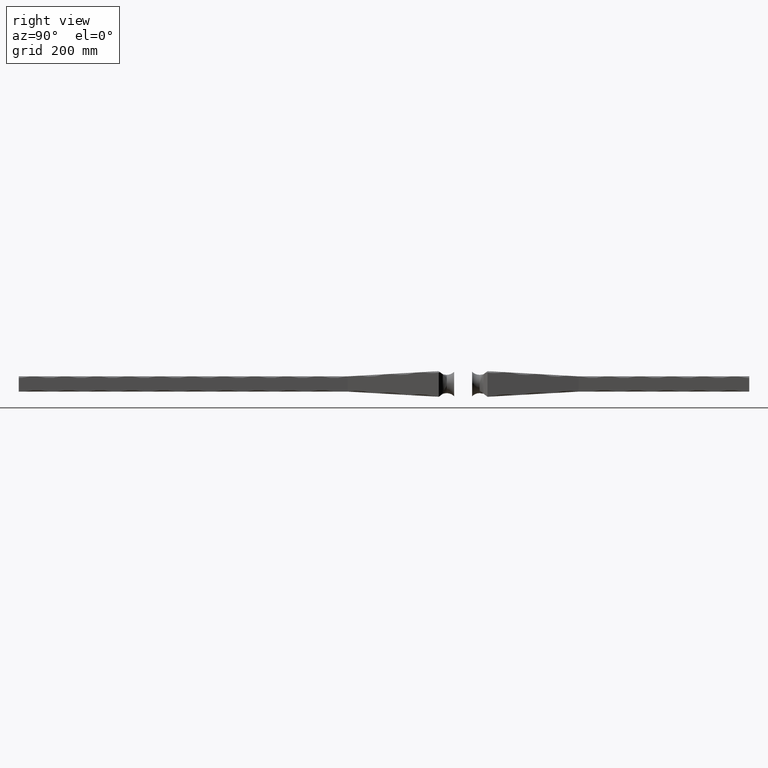
[diagram: clean part render]
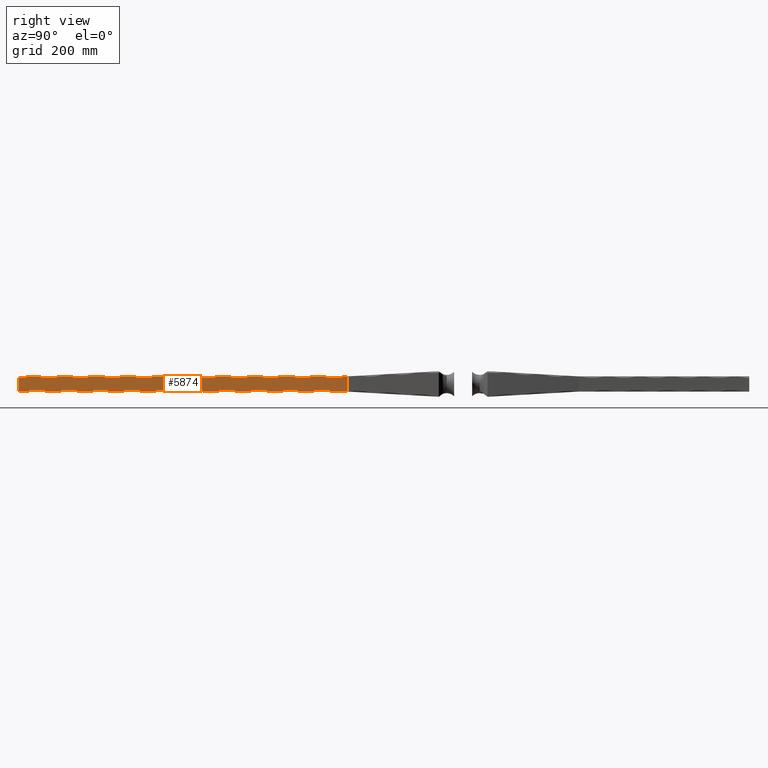
[diagram: same view with one face highlighted and labeled with its STEP entity id]
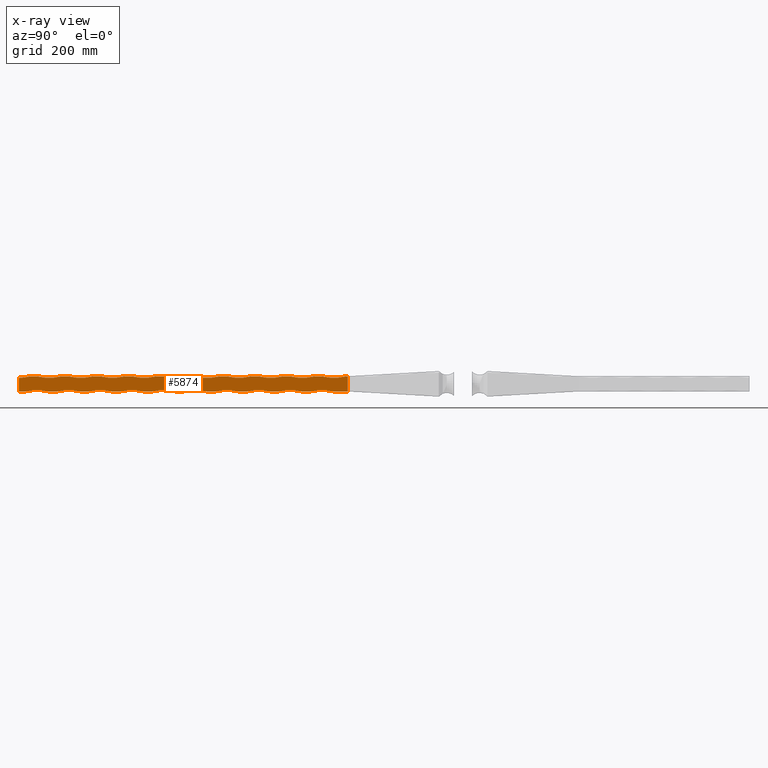
[diagram: x-ray of the same camera — body ghosted, the highlighted face saturated]
A machine part, right view. The second image highlights one B-rep face of the part: STEP entity #5874.
The next image is the same camera in x-ray: the body ghosted, the highlighted face saturated — about 0% of this face is hidden behind the body in this view.
In plain terms, the highlighted planar face has unit normal (-1, 0, 0).
Its self-contained STEP definition (entity closure, byte-faithful):
#32 = ORIENTED_EDGE ( 'NONE', *, *, #12212, .T. ) ;
#45 = AXIS2_PLACEMENT_3D ( 'NONE', #2067, #4559, #2368 ) ;
#132 = CARTESIAN_POINT ( 'NONE',  ( 12.50000000000000178, -472.0000000000000000, -12.50000000000000178 ) ) ;
#148 = CARTESIAN_POINT ( 'NONE',  ( 12.50000000000001776, -712.0000000000000000, 12.49999999999998046 ) ) ;
#170 = LINE ( 'NONE', #6747, #4858 ) ;
#187 = LINE ( 'NONE', #9151, #12986 ) ;
#212 = EDGE_CURVE ( 'NONE', #6256, #5781, #1397, .T. ) ;
#272 = PLANE ( 'NONE',  #13583 ) ;
#373 = CIRCLE ( 'NONE', #11772, 81.25000000000004263 ) ;
#387 = DIRECTION ( 'NONE',  ( 0.000000000000000000, 0.000000000000000000, 1.000000000000000000 ) ) ;
#523 = EDGE_CURVE ( 'NONE', #5800, #10783, #639, .T. ) ;
#525 = VERTEX_POINT ( 'NONE', #1405 ) ;
#551 = ORIENTED_EDGE ( 'NONE', *, *, #7808, .F. ) ;
#556 = VECTOR ( 'NONE', #643, 1000.000000000000000 ) ;
#569 = CARTESIAN_POINT ( 'NONE',  ( 12.50000000000000178, -315.9999999999999432, -12.50000000000000178 ) ) ;
#575 = LINE ( 'NONE', #11603, #9081 ) ;
#579 = DIRECTION ( 'NONE',  ( -0.000000000000000000, 1.000000000000000000, -0.000000000000000000 ) ) ;
#580 = AXIS2_PLACEMENT_3D ( 'NONE', #14434, #15561, #13091 ) ;
#639 = LINE ( 'NONE', #4353, #13406 ) ;
#643 = DIRECTION ( 'NONE',  ( -0.000000000000000000, 1.000000000000000000, -0.000000000000000000 ) ) ;
#834 = VERTEX_POINT ( 'NONE', #4502 ) ;
#837 = LINE ( 'NONE', #1064, #12235 ) ;
#884 = VERTEX_POINT ( 'NONE', #15848 ) ;
#906 = CARTESIAN_POINT ( 'NONE',  ( 12.50000000000000000, -1965.355339059327207, 12.50000000000000000 ) ) ;
#1059 = VERTEX_POINT ( 'NONE', #10525 ) ;
#1064 = CARTESIAN_POINT ( 'NONE',  ( 12.50000000000000000, -1965.355339059327207, 12.50000000000000000 ) ) ;
#1082 = CARTESIAN_POINT ( 'NONE',  ( 12.50000000000000000, -1965.355339059327207, 12.50000000000000000 ) ) ;
#1108 = ORIENTED_EDGE ( 'NONE', *, *, #1468, .T. ) ;
#1155 = VERTEX_POINT ( 'NONE', #1597 ) ;
#1159 = LINE ( 'NONE', #7810, #7934 ) ;
#1207 = DIRECTION ( 'NONE',  ( 0.000000000000000000, 0.000000000000000000, 1.000000000000000000 ) ) ;
#1305 = VECTOR ( 'NONE', #3543, 1000.000000000000000 ) ;
#1309 = VERTEX_POINT ( 'NONE', #10400 ) ;
#1328 = CARTESIAN_POINT ( 'NONE',  ( 12.50000000000000355, -211.9999999999999716, 91.25000000000005684 ) ) ;
#1367 = ORIENTED_EDGE ( 'NONE', *, *, #4287, .F. ) ;
#1376 = AXIS2_PLACEMENT_3D ( 'NONE', #7094, #14589, #4692 ) ;
#1397 = LINE ( 'NONE', #11718, #14730 ) ;
#1405 = CARTESIAN_POINT ( 'NONE',  ( 12.50000000000000000, -190.0000000000000000, -12.50000000000000000 ) ) ;
#1468 = EDGE_CURVE ( 'NONE', #525, #11879, #9528, .T. ) ;
#1484 = DIRECTION ( 'NONE',  ( 0.000000000000000000, 0.000000000000000000, 1.000000000000000000 ) ) ;
#1498 = VERTEX_POINT ( 'NONE', #11832 ) ;
#1500 = AXIS2_PLACEMENT_3D ( 'NONE', #3922, #7651, #1484 ) ;
#1537 = DIRECTION ( 'NONE',  ( 1.000000000000000000, -0.000000000000000000, -0.000000000000000000 ) ) ;
#1549 = CARTESIAN_POINT ( 'NONE',  ( 12.50000000000000000, -1965.355339059327207, 12.50000000000000000 ) ) ;
#1597 = CARTESIAN_POINT ( 'NONE',  ( 12.50000000000000178, -492.0000000000000000, 12.49999999999999822 ) ) ;
#1640 = CARTESIAN_POINT ( 'NONE',  ( 12.49999999999999645, -659.9999999999998863, 12.49999999999999645 ) ) ;
#1646 = VECTOR ( 'NONE', #6930, 1000.000000000000000 ) ;
#1669 = DIRECTION ( 'NONE',  ( 0.000000000000000000, 0.000000000000000000, 1.000000000000000000 ) ) ;
#1673 = CIRCLE ( 'NONE', #5735, 81.25000000000004263 ) ;
#1724 = DIRECTION ( 'NONE',  ( 1.000000000000000000, -0.000000000000000000, -0.000000000000000000 ) ) ;
#1743 = DIRECTION ( 'NONE',  ( 0.000000000000000000, 0.000000000000000000, 1.000000000000000000 ) ) ;
#1849 = CARTESIAN_POINT ( 'NONE',  ( 12.50000000000000355, -284.0000000000000000, 12.50000000000000000 ) ) ;
#1855 = DIRECTION ( 'NONE',  ( -0.000000000000000000, 1.000000000000000000, -0.000000000000000000 ) ) ;
#1857 = DIRECTION ( 'NONE',  ( -0.000000000000000000, 1.000000000000000000, -0.000000000000000000 ) ) ;
#1860 = VERTEX_POINT ( 'NONE', #14282 ) ;
#1955 = CARTESIAN_POINT ( 'NONE',  ( 12.50000000000000000, -1965.355339059327207, -12.50000000000000000 ) ) ;
#1965 = DIRECTION ( 'NONE',  ( 0.000000000000000000, 0.000000000000000000, 1.000000000000000000 ) ) ;
#1995 = CARTESIAN_POINT ( 'NONE',  ( 12.50000000000000000, -700.0000000000000000, 12.49999999999999645 ) ) ;
#2023 = EDGE_CURVE ( 'NONE', #15016, #5970, #187, .T. ) ;
#2067 = CARTESIAN_POINT ( 'NONE',  ( 12.50000000000000355, -315.9999999999999432, 91.25000000000005684 ) ) ;
#2140 = VERTEX_POINT ( 'NONE', #6356 ) ;
#2186 = CIRCLE ( 'NONE', #5016, 81.24999999999998579 ) ;
#2250 = AXIS2_PLACEMENT_3D ( 'NONE', #4905, #13439, #1207 ) ;
#2368 = DIRECTION ( 'NONE',  ( 0.000000000000000000, 0.000000000000000000, 1.000000000000000000 ) ) ;
#2393 = VERTEX_POINT ( 'NONE', #7759 ) ;
#2453 = VECTOR ( 'NONE', #2775, 1000.000000000000000 ) ;
#2487 = CARTESIAN_POINT ( 'NONE',  ( 12.50000000000000000, -1965.355339059327207, 12.50000000000000000 ) ) ;
#2539 = CARTESIAN_POINT ( 'NONE',  ( 12.49999999999999645, -616.0000000000000000, -12.49999999999999645 ) ) ;
#2728 = CARTESIAN_POINT ( 'NONE',  ( 12.50000000000000178, -387.9999999999999432, -91.24999999999997158 ) ) ;
#2751 = DIRECTION ( 'NONE',  ( 1.000000000000000000, -0.000000000000000000, -0.000000000000000000 ) ) ;
#2766 = CARTESIAN_POINT ( 'NONE',  ( 12.50000000000000000, -647.9999999999998863, 12.49999999999999645 ) ) ;
#2775 = DIRECTION ( 'NONE',  ( -0.000000000000000000, 1.000000000000000000, -0.000000000000000000 ) ) ;
#2801 = LINE ( 'NONE', #11784, #1646 ) ;
#2832 = CARTESIAN_POINT ( 'NONE',  ( 12.50000000000000355, -263.9999999999999432, 91.25000000000005684 ) ) ;
#2851 = AXIS2_PLACEMENT_3D ( 'NONE', #5836, #12039, #5936 ) ;
#2868 = CARTESIAN_POINT ( 'NONE',  ( 12.50000000000000178, -419.9999999999999432, 91.25000000000005684 ) ) ;
#2942 = CARTESIAN_POINT ( 'NONE',  ( 12.50000000000000000, -1965.355339059327207, -12.50000000000000000 ) ) ;
#2969 = CARTESIAN_POINT ( 'NONE',  ( 12.50000000000000355, -231.9999999999999716, -91.24999999999997158 ) ) ;
#2973 = AXIS2_PLACEMENT_3D ( 'NONE', #11915, #15734, #5712 ) ;
#3013 = CARTESIAN_POINT ( 'NONE',  ( 12.50000000000000178, -543.9999999999998863, -91.24999999999997158 ) ) ;
#3017 = EDGE_CURVE ( 'NONE', #14874, #1309, #1159, .T. ) ;
#3024 = CARTESIAN_POINT ( 'NONE',  ( 12.50000000000000355, -335.9999999999999432, 12.50000000000000000 ) ) ;
#3039 = EDGE_CURVE ( 'NONE', #1860, #15954, #8335, .T. ) ;
#3107 = CARTESIAN_POINT ( 'NONE',  ( 12.50000000000000178, -367.9999999999999432, -12.50000000000000178 ) ) ;
#3135 = DIRECTION ( 'NONE',  ( 1.000000000000000000, -0.000000000000000000, -0.000000000000000000 ) ) ;
#3147 = DIRECTION ( 'NONE',  ( 0.000000000000000000, 0.000000000000000000, 1.000000000000000000 ) ) ;
#3238 = VECTOR ( 'NONE', #8782, 1000.000000000000000 ) ;
#3284 = CIRCLE ( 'NONE', #7011, 81.25000000000005684 ) ;
#3315 = CIRCLE ( 'NONE', #1376, 81.24999999999998579 ) ;
#3338 = ORIENTED_EDGE ( 'NONE', *, *, #11411, .T. ) ;
#3396 = LINE ( 'NONE', #11671, #6667 ) ;
#3538 = VERTEX_POINT ( 'NONE', #9033 ) ;
#3543 = DIRECTION ( 'NONE',  ( -0.000000000000000000, 1.000000000000000000, -0.000000000000000000 ) ) ;
#3572 = VERTEX_POINT ( 'NONE', #15282 ) ;
#3594 = CARTESIAN_POINT ( 'NONE',  ( 12.50000000000000178, -387.9999999999999432, 12.49999999999999822 ) ) ;
#3622 = LINE ( 'NONE', #2487, #6513 ) ;
#3630 = EDGE_CURVE ( 'NONE', #5717, #525, #11009, .T. ) ;
#3699 = AXIS2_PLACEMENT_3D ( 'NONE', #5673, #15368, #7994 ) ;
#3791 = CIRCLE ( 'NONE', #15383, 81.25000000000004263 ) ;
#3823 = EDGE_CURVE ( 'NONE', #15159, #1309, #373, .T. ) ;
#3829 = ORIENTED_EDGE ( 'NONE', *, *, #14087, .F. ) ;
#3919 = FACE_OUTER_BOUND ( 'NONE', #13213, .T. ) ;
#3922 = CARTESIAN_POINT ( 'NONE',  ( 12.50000000000000000, -679.9999999999998863, 91.25000000000005684 ) ) ;
#3947 = VERTEX_POINT ( 'NONE', #2539 ) ;
#4047 = ORIENTED_EDGE ( 'NONE', *, *, #8124, .F. ) ;
#4049 = VECTOR ( 'NONE', #1857, 1000.000000000000000 ) ;
#4084 = DIRECTION ( 'NONE',  ( 0.000000000000000000, 0.000000000000000000, 1.000000000000000000 ) ) ;
#4181 = EDGE_CURVE ( 'NONE', #1059, #10297, #8887, .T. ) ;
#4230 = CIRCLE ( 'NONE', #1500, 81.25000000000004263 ) ;
#4287 = EDGE_CURVE ( 'NONE', #7382, #3947, #7941, .T. ) ;
#4328 = ORIENTED_EDGE ( 'NONE', *, *, #523, .T. ) ;
#4353 = CARTESIAN_POINT ( 'NONE',  ( 12.50000000000000000, -1965.355339059327207, -12.50000000000000000 ) ) ;
#4408 = ORIENTED_EDGE ( 'NONE', *, *, #4629, .T. ) ;
#4502 = CARTESIAN_POINT ( 'NONE',  ( 12.50000000000000355, -263.9999999999999432, -12.50000000000000355 ) ) ;
#4559 = DIRECTION ( 'NONE',  ( -1.000000000000000000, 0.000000000000000000, 0.000000000000000000 ) ) ;
#4629 = EDGE_CURVE ( 'NONE', #5571, #15197, #6004, .T. ) ;
#4692 = DIRECTION ( 'NONE',  ( 0.000000000000000000, 0.000000000000000000, 1.000000000000000000 ) ) ;
#4737 = ORIENTED_EDGE ( 'NONE', *, *, #8906, .T. ) ;
#4761 = ORIENTED_EDGE ( 'NONE', *, *, #12728, .F. ) ;
#4812 = VECTOR ( 'NONE', #6681, 1000.000000000000000 ) ;
#4829 = DIRECTION ( 'NONE',  ( 0.000000000000000000, 0.000000000000000000, 1.000000000000000000 ) ) ;
#4835 = CARTESIAN_POINT ( 'NONE',  ( 12.50000000000000000, -1965.355339059327207, -12.50000000000000000 ) ) ;
#4858 = VECTOR ( 'NONE', #579, 1000.000000000000000 ) ;
#4905 = CARTESIAN_POINT ( 'NONE',  ( 12.50000000000000000, -647.9999999999998863, -91.24999999999997158 ) ) ;
#5016 = AXIS2_PLACEMENT_3D ( 'NONE', #8363, #8311, #14395 ) ;
#5034 = DIRECTION ( 'NONE',  ( -0.000000000000000000, 1.000000000000000000, -0.000000000000000000 ) ) ;
#5115 = CARTESIAN_POINT ( 'NONE',  ( 12.50000000000000000, -1965.355339059327207, -12.50000000000000000 ) ) ;
#5140 = ORIENTED_EDGE ( 'NONE', *, *, #2023, .F. ) ;
#5235 = EDGE_CURVE ( 'NONE', #14385, #1498, #15830, .T. ) ;
#5257 = CARTESIAN_POINT ( 'NONE',  ( 12.50000000000000000, -1965.355339059327207, 12.50000000000000000 ) ) ;
#5289 = DIRECTION ( 'NONE',  ( -0.000000000000000000, 1.000000000000000000, -0.000000000000000000 ) ) ;
#5299 = VERTEX_POINT ( 'NONE', #9880 ) ;
#5303 = ORIENTED_EDGE ( 'NONE', *, *, #12136, .T. ) ;
#5382 = CIRCLE ( 'NONE', #8462, 81.24999999999998579 ) ;
#5405 = CARTESIAN_POINT ( 'NONE',  ( 12.49999999999999645, -512.0000000000000000, -12.49999999999999822 ) ) ;
#5419 = VERTEX_POINT ( 'NONE', #12621 ) ;
#5426 = DIRECTION ( 'NONE',  ( -1.000000000000000000, 0.000000000000000000, 0.000000000000000000 ) ) ;
#5439 = EDGE_CURVE ( 'NONE', #12546, #12314, #575, .T. ) ;
#5571 = VERTEX_POINT ( 'NONE', #15423 ) ;
#5605 = LINE ( 'NONE', #4835, #9463 ) ;
#5673 = CARTESIAN_POINT ( 'NONE',  ( 12.50000000000000355, -284.0000000000000000, -91.24999999999997158 ) ) ;
#5712 = DIRECTION ( 'NONE',  ( 0.000000000000000000, 0.000000000000000000, 1.000000000000000000 ) ) ;
#5717 = VERTEX_POINT ( 'NONE', #9516 ) ;
#5735 = AXIS2_PLACEMENT_3D ( 'NONE', #12963, #11660, #1669 ) ;
#5741 = CARTESIAN_POINT ( 'NONE',  ( 12.50000000000000000, -700.0000000000000000, -91.24999999999997158 ) ) ;
#5763 = EDGE_CURVE ( 'NONE', #15159, #3538, #837, .T. ) ;
#5781 = VERTEX_POINT ( 'NONE', #3594 ) ;
#5800 = VERTEX_POINT ( 'NONE', #7424 ) ;
#5836 = CARTESIAN_POINT ( 'NONE',  ( 12.50000000000000178, -367.9999999999999432, 91.25000000000005684 ) ) ;
#5854 = VECTOR ( 'NONE', #1965, 1000.000000000000000 ) ;
#5864 = CARTESIAN_POINT ( 'NONE',  ( 12.50000000000000000, -1965.355339059327207, -12.50000000000000000 ) ) ;
#5874 = ADVANCED_FACE ( 'NONE', ( #3919 ), #272, .F. ) ;
#5914 = CARTESIAN_POINT ( 'NONE',  ( 12.50000000000000000, -576.0000000000000000, -12.50000000000000000 ) ) ;
#5936 = DIRECTION ( 'NONE',  ( 0.000000000000000000, 0.000000000000000000, 1.000000000000000000 ) ) ;
#5964 = DIRECTION ( 'NONE',  ( -1.000000000000000000, 0.000000000000000000, 0.000000000000000000 ) ) ;
#5970 = VERTEX_POINT ( 'NONE', #10837 ) ;
#6004 = CIRCLE ( 'NONE', #45, 81.25000000000004263 ) ;
#6014 = CARTESIAN_POINT ( 'NONE',  ( 12.50000000000000000, -576.0000000000000000, 91.25000000000005684 ) ) ;
#6167 = ORIENTED_EDGE ( 'NONE', *, *, #9012, .T. ) ;
#6256 = VERTEX_POINT ( 'NONE', #9134 ) ;
#6290 = CARTESIAN_POINT ( 'NONE',  ( 12.50000000000000000, -1965.355339059327207, -12.50000000000000000 ) ) ;
#6356 = CARTESIAN_POINT ( 'NONE',  ( 12.49999999999999645, -720.0000000000000000, -12.49999999999999645 ) ) ;
#6373 = DIRECTION ( 'NONE',  ( -0.000000000000000000, 1.000000000000000000, -0.000000000000000000 ) ) ;
#6448 = DIRECTION ( 'NONE',  ( -1.000000000000000000, 0.000000000000000000, 0.000000000000000000 ) ) ;
#6513 = VECTOR ( 'NONE', #7505, 1000.000000000000000 ) ;
#6667 = VECTOR ( 'NONE', #10713, 1000.000000000000000 ) ;
#6681 = DIRECTION ( 'NONE',  ( -0.000000000000000000, 1.000000000000000000, -0.000000000000000000 ) ) ;
#6688 = DIRECTION ( 'NONE',  ( 0.000000000000000000, 0.000000000000000000, 1.000000000000000000 ) ) ;
#6689 = ORIENTED_EDGE ( 'NONE', *, *, #10455, .F. ) ;
#6747 = CARTESIAN_POINT ( 'NONE',  ( 12.50000000000000000, -1965.355339059327207, -12.50000000000000000 ) ) ;
#6760 = EDGE_CURVE ( 'NONE', #15832, #10783, #12035, .T. ) ;
#6926 = DIRECTION ( 'NONE',  ( 1.000000000000000000, -0.000000000000000000, -0.000000000000000000 ) ) ;
#6930 = DIRECTION ( 'NONE',  ( -0.000000000000000000, 1.000000000000000000, -0.000000000000000000 ) ) ;
#6992 = ORIENTED_EDGE ( 'NONE', *, *, #7882, .T. ) ;
#7011 = AXIS2_PLACEMENT_3D ( 'NONE', #8734, #6448, #11314 ) ;
#7077 = EDGE_CURVE ( 'NONE', #5419, #16038, #2186, .T. ) ;
#7094 = CARTESIAN_POINT ( 'NONE',  ( 12.50000000000000178, -335.9999999999999432, -91.24999999999997158 ) ) ;
#7097 = CARTESIAN_POINT ( 'NONE',  ( 12.49999999999999645, -667.9999999999998863, -12.49999999999999645 ) ) ;
#7275 = CIRCLE ( 'NONE', #2973, 81.25000000000004263 ) ;
#7281 = ORIENTED_EDGE ( 'NONE', *, *, #7489, .F. ) ;
#7382 = VERTEX_POINT ( 'NONE', #5914 ) ;
#7397 = EDGE_CURVE ( 'NONE', #9613, #8659, #3315, .T. ) ;
#7424 = CARTESIAN_POINT ( 'NONE',  ( 12.50000000000000178, -523.9999999999998863, -12.50000000000000178 ) ) ;
#7488 = CIRCLE ( 'NONE', #580, 81.25000000000004263 ) ;
#7489 = EDGE_CURVE ( 'NONE', #5571, #15954, #9107, .T. ) ;
#7505 = DIRECTION ( 'NONE',  ( -0.000000000000000000, 1.000000000000000000, -0.000000000000000000 ) ) ;
#7509 = CARTESIAN_POINT ( 'NONE',  ( 12.50000000000000000, -730.0000000000000000, -12.50000000000000000 ) ) ;
#7651 = DIRECTION ( 'NONE',  ( -1.000000000000000000, 0.000000000000000000, 0.000000000000000000 ) ) ;
#7662 = ORIENTED_EDGE ( 'NONE', *, *, #3823, .T. ) ;
#7668 = CIRCLE ( 'NONE', #9904, 81.24999999999998579 ) ;
#7677 = VERTEX_POINT ( 'NONE', #12678 ) ;
#7724 = VECTOR ( 'NONE', #11792, 1000.000000000000000 ) ;
#7759 = CARTESIAN_POINT ( 'NONE',  ( 12.50000000000000000, -627.9999999999998863, -12.50000000000000000 ) ) ;
#7801 = DIRECTION ( 'NONE',  ( -0.000000000000000000, 1.000000000000000000, -0.000000000000000000 ) ) ;
#7808 = EDGE_CURVE ( 'NONE', #5800, #3572, #9860, .T. ) ;
#7810 = CARTESIAN_POINT ( 'NONE',  ( 12.50000000000000000, -1965.355339059327207, 12.50000000000000000 ) ) ;
#7868 = VERTEX_POINT ( 'NONE', #12794 ) ;
#7882 = EDGE_CURVE ( 'NONE', #9613, #7677, #170, .T. ) ;
#7934 = VECTOR ( 'NONE', #14010, 1000.000000000000000 ) ;
#7941 = CIRCLE ( 'NONE', #15693, 81.24999999999998579 ) ;
#7994 = DIRECTION ( 'NONE',  ( 0.000000000000000000, 0.000000000000000000, 1.000000000000000000 ) ) ;
#8002 = CARTESIAN_POINT ( 'NONE',  ( 12.50000000000000000, -190.0000000000000000, 12.50000000000000000 ) ) ;
#8034 = ORIENTED_EDGE ( 'NONE', *, *, #4181, .T. ) ;
#8035 = ORIENTED_EDGE ( 'NONE', *, *, #14124, .F. ) ;
#8065 = CARTESIAN_POINT ( 'NONE',  ( 12.50000000000000000, -1965.355339059327207, -12.50000000000000000 ) ) ;
#8116 = ORIENTED_EDGE ( 'NONE', *, *, #3039, .T. ) ;
#8124 = EDGE_CURVE ( 'NONE', #2393, #11549, #8518, .T. ) ;
#8311 = DIRECTION ( 'NONE',  ( 1.000000000000000000, -0.000000000000000000, -0.000000000000000000 ) ) ;
#8333 = ORIENTED_EDGE ( 'NONE', *, *, #13690, .F. ) ;
#8335 = CIRCLE ( 'NONE', #13220, 81.25000000000004263 ) ;
#8363 = CARTESIAN_POINT ( 'NONE',  ( 12.50000000000000178, -439.9999999999999432, -91.24999999999997158 ) ) ;
#8424 = CARTESIAN_POINT ( 'NONE',  ( 12.49999999999999645, -191.9999999999999432, 12.50000000000000000 ) ) ;
#8451 = LINE ( 'NONE', #5257, #13282 ) ;
#8462 = AXIS2_PLACEMENT_3D ( 'NONE', #5741, #6926, #9578 ) ;
#8518 = CIRCLE ( 'NONE', #2250, 81.24999999999998579 ) ;
#8528 = ORIENTED_EDGE ( 'NONE', *, *, #212, .F. ) ;
#8659 = VERTEX_POINT ( 'NONE', #9936 ) ;
#8668 = ORIENTED_EDGE ( 'NONE', *, *, #12124, .T. ) ;
#8734 = CARTESIAN_POINT ( 'NONE',  ( 12.50000000000001776, -732.0000000000000000, 91.25000000000004263 ) ) ;
#8782 = DIRECTION ( 'NONE',  ( -0.000000000000000000, 1.000000000000000000, -0.000000000000000000 ) ) ;
#8887 = LINE ( 'NONE', #7509, #14506 ) ;
#8906 = EDGE_CURVE ( 'NONE', #2393, #3947, #11182, .T. ) ;
#8940 = CARTESIAN_POINT ( 'NONE',  ( 12.50000000000000000, -1965.355339059327207, -12.50000000000000000 ) ) ;
#8963 = CARTESIAN_POINT ( 'NONE',  ( 12.50000000000000000, -596.0000000000000000, -91.24999999999997158 ) ) ;
#8979 = CIRCLE ( 'NONE', #3699, 81.24999999999998579 ) ;
#9002 = DIRECTION ( 'NONE',  ( 0.000000000000000000, 0.000000000000000000, 1.000000000000000000 ) ) ;
#9012 = EDGE_CURVE ( 'NONE', #884, #11549, #15643, .T. ) ;
#9026 = ORIENTED_EDGE ( 'NONE', *, *, #5439, .F. ) ;
#9033 = CARTESIAN_POINT ( 'NONE',  ( 12.50000000000000178, -543.9999999999998863, 12.49999999999999822 ) ) ;
#9081 = VECTOR ( 'NONE', #5289, 1000.000000000000000 ) ;
#9107 = LINE ( 'NONE', #1082, #16041 ) ;
#9134 = CARTESIAN_POINT ( 'NONE',  ( 12.49999999999999645, -399.9999999999998863, 12.49999999999999822 ) ) ;
#9151 = CARTESIAN_POINT ( 'NONE',  ( 12.50000000000000000, -1965.355339059327207, 12.50000000000000000 ) ) ;
#9191 = ORIENTED_EDGE ( 'NONE', *, *, #12312, .T. ) ;
#9376 = ORIENTED_EDGE ( 'NONE', *, *, #15878, .T. ) ;
#9463 = VECTOR ( 'NONE', #5034, 1000.000000000000000 ) ;
#9464 = EDGE_CURVE ( 'NONE', #12546, #1059, #3284, .T. ) ;
#9491 = EDGE_CURVE ( 'NONE', #13059, #12314, #4230, .T. ) ;
#9516 = CARTESIAN_POINT ( 'NONE',  ( 12.50000000000000355, -211.9999999999999716, -12.50000000000000355 ) ) ;
#9528 = LINE ( 'NONE', #14204, #5854 ) ;
#9578 = DIRECTION ( 'NONE',  ( 0.000000000000000000, 0.000000000000000000, 1.000000000000000000 ) ) ;
#9613 = VERTEX_POINT ( 'NONE', #569 ) ;
#9662 = EDGE_CURVE ( 'NONE', #13059, #15390, #11562, .T. ) ;
#9692 = EDGE_CURVE ( 'NONE', #10500, #5781, #13672, .T. ) ;
#9860 = CIRCLE ( 'NONE', #10731, 81.24999999999998579 ) ;
#9880 = CARTESIAN_POINT ( 'NONE',  ( 12.49999999999999645, -503.9999999999998863, 12.49999999999999822 ) ) ;
#9904 = AXIS2_PLACEMENT_3D ( 'NONE', #2728, #1537, #11361 ) ;
#9936 = CARTESIAN_POINT ( 'NONE',  ( 12.49999999999999645, -356.0000000000000568, -12.49999999999999822 ) ) ;
#10044 = ORIENTED_EDGE ( 'NONE', *, *, #3017, .F. ) ;
#10177 = CARTESIAN_POINT ( 'NONE',  ( 12.50000000000000178, -492.0000000000000000, -91.24999999999997158 ) ) ;
#10297 = VERTEX_POINT ( 'NONE', #15110 ) ;
#10400 = CARTESIAN_POINT ( 'NONE',  ( 12.50000000000000000, -596.0000000000000000, 12.49999999999999645 ) ) ;
#10455 = EDGE_CURVE ( 'NONE', #884, #2140, #5382, .T. ) ;
#10500 = VERTEX_POINT ( 'NONE', #10709 ) ;
#10525 = CARTESIAN_POINT ( 'NONE',  ( 12.50000000000000000, -730.0000000000000000, 10.02461911446641807 ) ) ;
#10556 = ORIENTED_EDGE ( 'NONE', *, *, #5763, .F. ) ;
#10709 = CARTESIAN_POINT ( 'NONE',  ( 12.49999999999999645, -347.9999999999999432, 12.49999999999999822 ) ) ;
#10713 = DIRECTION ( 'NONE',  ( -0.000000000000000000, 1.000000000000000000, -0.000000000000000000 ) ) ;
#10731 = AXIS2_PLACEMENT_3D ( 'NONE', #3013, #1724, #6688 ) ;
#10780 = LINE ( 'NONE', #5115, #3238 ) ;
#10783 = VERTEX_POINT ( 'NONE', #5405 ) ;
#10817 = EDGE_CURVE ( 'NONE', #834, #7868, #14646, .T. ) ;
#10837 = CARTESIAN_POINT ( 'NONE',  ( 12.50000000000000178, -439.9999999999999432, 12.49999999999999822 ) ) ;
#11009 = LINE ( 'NONE', #5864, #7724 ) ;
#11025 = VERTEX_POINT ( 'NONE', #14868 ) ;
#11059 = AXIS2_PLACEMENT_3D ( 'NONE', #2969, #3135, #11613 ) ;
#11107 = ORIENTED_EDGE ( 'NONE', *, *, #12149, .F. ) ;
#11155 = VERTEX_POINT ( 'NONE', #3107 ) ;
#11165 = DIRECTION ( 'NONE',  ( -0.000000000000000000, 1.000000000000000000, -0.000000000000000000 ) ) ;
#11173 = ORIENTED_EDGE ( 'NONE', *, *, #6760, .F. ) ;
#11182 = LINE ( 'NONE', #13025, #4049 ) ;
#11308 = ORIENTED_EDGE ( 'NONE', *, *, #12626, .T. ) ;
#11314 = DIRECTION ( 'NONE',  ( 0.000000000000000000, 0.000000000000000000, 1.000000000000000000 ) ) ;
#11361 = DIRECTION ( 'NONE',  ( 0.000000000000000000, 0.000000000000000000, 1.000000000000000000 ) ) ;
#11411 = EDGE_CURVE ( 'NONE', #14874, #15390, #7488, .T. ) ;
#11438 = CARTESIAN_POINT ( 'NONE',  ( 12.49999999999999645, -451.9999999999999432, 12.49999999999999822 ) ) ;
#11482 = DIRECTION ( 'NONE',  ( -0.000000000000000000, 1.000000000000000000, -0.000000000000000000 ) ) ;
#11549 = VERTEX_POINT ( 'NONE', #7097 ) ;
#11562 = LINE ( 'NONE', #906, #1305 ) ;
#11598 = DIRECTION ( 'NONE',  ( 1.000000000000000000, -0.000000000000000000, -0.000000000000000000 ) ) ;
#11603 = CARTESIAN_POINT ( 'NONE',  ( 12.50000000000000000, -1965.355339059327207, 12.50000000000000000 ) ) ;
#11613 = DIRECTION ( 'NONE',  ( 0.000000000000000000, 0.000000000000000000, 1.000000000000000000 ) ) ;
#11625 = EDGE_CURVE ( 'NONE', #10500, #15197, #3622, .T. ) ;
#11636 = ORIENTED_EDGE ( 'NONE', *, *, #7397, .F. ) ;
#11641 = DIRECTION ( 'NONE',  ( -1.000000000000000000, 0.000000000000000000, 0.000000000000000000 ) ) ;
#11660 = DIRECTION ( 'NONE',  ( -1.000000000000000000, 0.000000000000000000, 0.000000000000000000 ) ) ;
#11671 = CARTESIAN_POINT ( 'NONE',  ( 12.50000000000000000, -1965.355339059327207, 12.50000000000000000 ) ) ;
#11718 = CARTESIAN_POINT ( 'NONE',  ( 12.50000000000000000, -1965.355339059327207, 12.50000000000000000 ) ) ;
#11772 = AXIS2_PLACEMENT_3D ( 'NONE', #6014, #5964, #4829 ) ;
#11784 = CARTESIAN_POINT ( 'NONE',  ( 12.50000000000000000, -1965.355339059327207, -12.50000000000000000 ) ) ;
#11792 = DIRECTION ( 'NONE',  ( -0.000000000000000000, 1.000000000000000000, -0.000000000000000000 ) ) ;
#11832 = CARTESIAN_POINT ( 'NONE',  ( 12.50000000000000355, -231.9999999999999716, 12.50000000000000000 ) ) ;
#11879 = VERTEX_POINT ( 'NONE', #8002 ) ;
#11915 = CARTESIAN_POINT ( 'NONE',  ( 12.50000000000000178, -523.9999999999998863, 91.25000000000005684 ) ) ;
#12035 = CIRCLE ( 'NONE', #12447, 81.24999999999998579 ) ;
#12039 = DIRECTION ( 'NONE',  ( -1.000000000000000000, 0.000000000000000000, 0.000000000000000000 ) ) ;
#12124 = EDGE_CURVE ( 'NONE', #15832, #16038, #13474, .T. ) ;
#12136 = EDGE_CURVE ( 'NONE', #5419, #11025, #10780, .T. ) ;
#12149 = EDGE_CURVE ( 'NONE', #11155, #11025, #7668, .T. ) ;
#12187 = ORIENTED_EDGE ( 'NONE', *, *, #9662, .F. ) ;
#12212 = EDGE_CURVE ( 'NONE', #10297, #2140, #15191, .T. ) ;
#12235 = VECTOR ( 'NONE', #12239, 1000.000000000000000 ) ;
#12239 = DIRECTION ( 'NONE',  ( -0.000000000000000000, 1.000000000000000000, -0.000000000000000000 ) ) ;
#12312 = EDGE_CURVE ( 'NONE', #5299, #3538, #7275, .T. ) ;
#12314 = VERTEX_POINT ( 'NONE', #1995 ) ;
#12363 = ORIENTED_EDGE ( 'NONE', *, *, #11625, .F. ) ;
#12404 = DIRECTION ( 'NONE',  ( 0.000000000000000000, 0.000000000000000000, 1.000000000000000000 ) ) ;
#12429 = ORIENTED_EDGE ( 'NONE', *, *, #15741, .T. ) ;
#12447 = AXIS2_PLACEMENT_3D ( 'NONE', #10177, #11598, #9002 ) ;
#12448 = VECTOR ( 'NONE', #11482, 1000.000000000000000 ) ;
#12546 = VERTEX_POINT ( 'NONE', #148 ) ;
#12610 = DIRECTION ( 'NONE',  ( -1.000000000000000000, 0.000000000000000000, 0.000000000000000000 ) ) ;
#12621 = CARTESIAN_POINT ( 'NONE',  ( 12.50000000000000178, -419.9999999999999432, -12.50000000000000178 ) ) ;
#12626 = EDGE_CURVE ( 'NONE', #6256, #5970, #3791, .T. ) ;
#12678 = CARTESIAN_POINT ( 'NONE',  ( 12.49999999999999645, -304.0000000000000568, -12.50000000000000000 ) ) ;
#12728 = EDGE_CURVE ( 'NONE', #14385, #11879, #8451, .T. ) ;
#12794 = CARTESIAN_POINT ( 'NONE',  ( 12.49999999999999645, -252.0000000000000568, -12.50000000000000000 ) ) ;
#12851 = LINE ( 'NONE', #1549, #12448 ) ;
#12855 = CARTESIAN_POINT ( 'NONE',  ( 12.49999999999999645, -555.9999999999998863, 12.49999999999999645 ) ) ;
#12917 = ORIENTED_EDGE ( 'NONE', *, *, #5235, .T. ) ;
#12963 = CARTESIAN_POINT ( 'NONE',  ( 12.50000000000000178, -472.0000000000000000, 91.25000000000005684 ) ) ;
#12986 = VECTOR ( 'NONE', #7801, 1000.000000000000000 ) ;
#13025 = CARTESIAN_POINT ( 'NONE',  ( 12.50000000000000000, -1965.355339059327207, -12.50000000000000000 ) ) ;
#13059 = VERTEX_POINT ( 'NONE', #1640 ) ;
#13074 = CARTESIAN_POINT ( 'NONE',  ( 12.49999999999999645, -460.0000000000000000, -12.49999999999999822 ) ) ;
#13091 = DIRECTION ( 'NONE',  ( 0.000000000000000000, 0.000000000000000000, 1.000000000000000000 ) ) ;
#13097 = VECTOR ( 'NONE', #14921, 1000.000000000000000 ) ;
#13213 = EDGE_LOOP ( 'NONE', ( #4761, #12917, #3829, #8116, #7281, #4408, #12363, #13676, #8528, #11308, #5140, #9376, #8333, #9191, #10556, #7662, #10044, #3338, #12187, #14032, #9026, #14243, #8034, #32, #6689, #6167, #4047, #4737, #1367, #13784, #551, #4328, #11173, #8668, #13995, #5303, #11107, #12429, #11636, #6992, #8035, #15294, #15628, #14185, #1108 ) ) ;
#13220 = AXIS2_PLACEMENT_3D ( 'NONE', #2832, #11641, #4084 ) ;
#13282 = VECTOR ( 'NONE', #15113, 1000.000000000000000 ) ;
#13406 = VECTOR ( 'NONE', #6373, 1000.000000000000000 ) ;
#13417 = CARTESIAN_POINT ( 'NONE',  ( 12.49999999999999645, -607.9999999999998863, 12.49999999999999645 ) ) ;
#13439 = DIRECTION ( 'NONE',  ( 1.000000000000000000, -0.000000000000000000, -0.000000000000000000 ) ) ;
#13474 = LINE ( 'NONE', #6290, #13097 ) ;
#13583 = AXIS2_PLACEMENT_3D ( 'NONE', #8940, #12610, #387 ) ;
#13588 = EDGE_CURVE ( 'NONE', #7382, #3572, #2801, .T. ) ;
#13672 = CIRCLE ( 'NONE', #2851, 81.25000000000004263 ) ;
#13676 = ORIENTED_EDGE ( 'NONE', *, *, #9692, .T. ) ;
#13690 = EDGE_CURVE ( 'NONE', #5299, #1155, #3396, .T. ) ;
#13756 = DIRECTION ( 'NONE',  ( 0.000000000000000000, 0.000000000000000000, -1.000000000000000000 ) ) ;
#13781 = CIRCLE ( 'NONE', #11059, 81.24999999999998579 ) ;
#13784 = ORIENTED_EDGE ( 'NONE', *, *, #13588, .T. ) ;
#13995 = ORIENTED_EDGE ( 'NONE', *, *, #7077, .F. ) ;
#14010 = DIRECTION ( 'NONE',  ( -0.000000000000000000, 1.000000000000000000, -0.000000000000000000 ) ) ;
#14032 = ORIENTED_EDGE ( 'NONE', *, *, #9491, .T. ) ;
#14087 = EDGE_CURVE ( 'NONE', #1860, #1498, #12851, .T. ) ;
#14124 = EDGE_CURVE ( 'NONE', #834, #7677, #8979, .T. ) ;
#14185 = ORIENTED_EDGE ( 'NONE', *, *, #3630, .T. ) ;
#14204 = CARTESIAN_POINT ( 'NONE',  ( 12.50000000000000000, -190.0000000000000000, 12.50000000000000000 ) ) ;
#14243 = ORIENTED_EDGE ( 'NONE', *, *, #9464, .T. ) ;
#14282 = CARTESIAN_POINT ( 'NONE',  ( 12.49999999999999645, -243.9999999999999432, 12.50000000000000000 ) ) ;
#14385 = VERTEX_POINT ( 'NONE', #8424 ) ;
#14395 = DIRECTION ( 'NONE',  ( 0.000000000000000000, 0.000000000000000000, 1.000000000000000000 ) ) ;
#14434 = CARTESIAN_POINT ( 'NONE',  ( 12.50000000000000000, -627.9999999999998863, 91.25000000000005684 ) ) ;
#14506 = VECTOR ( 'NONE', #13756, 1000.000000000000000 ) ;
#14589 = DIRECTION ( 'NONE',  ( 1.000000000000000000, -0.000000000000000000, -0.000000000000000000 ) ) ;
#14646 = LINE ( 'NONE', #1955, #4812 ) ;
#14730 = VECTOR ( 'NONE', #1855, 1000.000000000000000 ) ;
#14776 = DIRECTION ( 'NONE',  ( -1.000000000000000000, 0.000000000000000000, 0.000000000000000000 ) ) ;
#14868 = CARTESIAN_POINT ( 'NONE',  ( 12.49999999999999645, -408.0000000000000568, -12.49999999999999822 ) ) ;
#14874 = VERTEX_POINT ( 'NONE', #13417 ) ;
#14921 = DIRECTION ( 'NONE',  ( -0.000000000000000000, 1.000000000000000000, -0.000000000000000000 ) ) ;
#15016 = VERTEX_POINT ( 'NONE', #11438 ) ;
#15110 = CARTESIAN_POINT ( 'NONE',  ( 12.50000000000000000, -730.0000000000000000, -12.50000000000000000 ) ) ;
#15113 = DIRECTION ( 'NONE',  ( -0.000000000000000000, 1.000000000000000000, -0.000000000000000000 ) ) ;
#15132 = EDGE_CURVE ( 'NONE', #5717, #7868, #13781, .T. ) ;
#15159 = VERTEX_POINT ( 'NONE', #12855 ) ;
#15191 = LINE ( 'NONE', #2942, #2453 ) ;
#15197 = VERTEX_POINT ( 'NONE', #3024 ) ;
#15274 = AXIS2_PLACEMENT_3D ( 'NONE', #1328, #14776, #12404 ) ;
#15282 = CARTESIAN_POINT ( 'NONE',  ( 12.49999999999999645, -564.0000000000000000, -12.49999999999999822 ) ) ;
#15294 = ORIENTED_EDGE ( 'NONE', *, *, #10817, .T. ) ;
#15368 = DIRECTION ( 'NONE',  ( 1.000000000000000000, -0.000000000000000000, -0.000000000000000000 ) ) ;
#15383 = AXIS2_PLACEMENT_3D ( 'NONE', #2868, #5426, #1743 ) ;
#15390 = VERTEX_POINT ( 'NONE', #2766 ) ;
#15423 = CARTESIAN_POINT ( 'NONE',  ( 12.49999999999999645, -295.9999999999999432, 12.50000000000000000 ) ) ;
#15561 = DIRECTION ( 'NONE',  ( -1.000000000000000000, 0.000000000000000000, 0.000000000000000000 ) ) ;
#15628 = ORIENTED_EDGE ( 'NONE', *, *, #15132, .F. ) ;
#15643 = LINE ( 'NONE', #8065, #556 ) ;
#15693 = AXIS2_PLACEMENT_3D ( 'NONE', #8963, #2751, #3147 ) ;
#15734 = DIRECTION ( 'NONE',  ( -1.000000000000000000, 0.000000000000000000, 0.000000000000000000 ) ) ;
#15741 = EDGE_CURVE ( 'NONE', #11155, #8659, #5605, .T. ) ;
#15830 = CIRCLE ( 'NONE', #15274, 81.25000000000004263 ) ;
#15832 = VERTEX_POINT ( 'NONE', #132 ) ;
#15848 = CARTESIAN_POINT ( 'NONE',  ( 12.50000000000000000, -679.9999999999998863, -12.50000000000000000 ) ) ;
#15878 = EDGE_CURVE ( 'NONE', #15016, #1155, #1673, .T. ) ;
#15954 = VERTEX_POINT ( 'NONE', #1849 ) ;
#16038 = VERTEX_POINT ( 'NONE', #13074 ) ;
#16041 = VECTOR ( 'NONE', #11165, 1000.000000000000000 ) ;